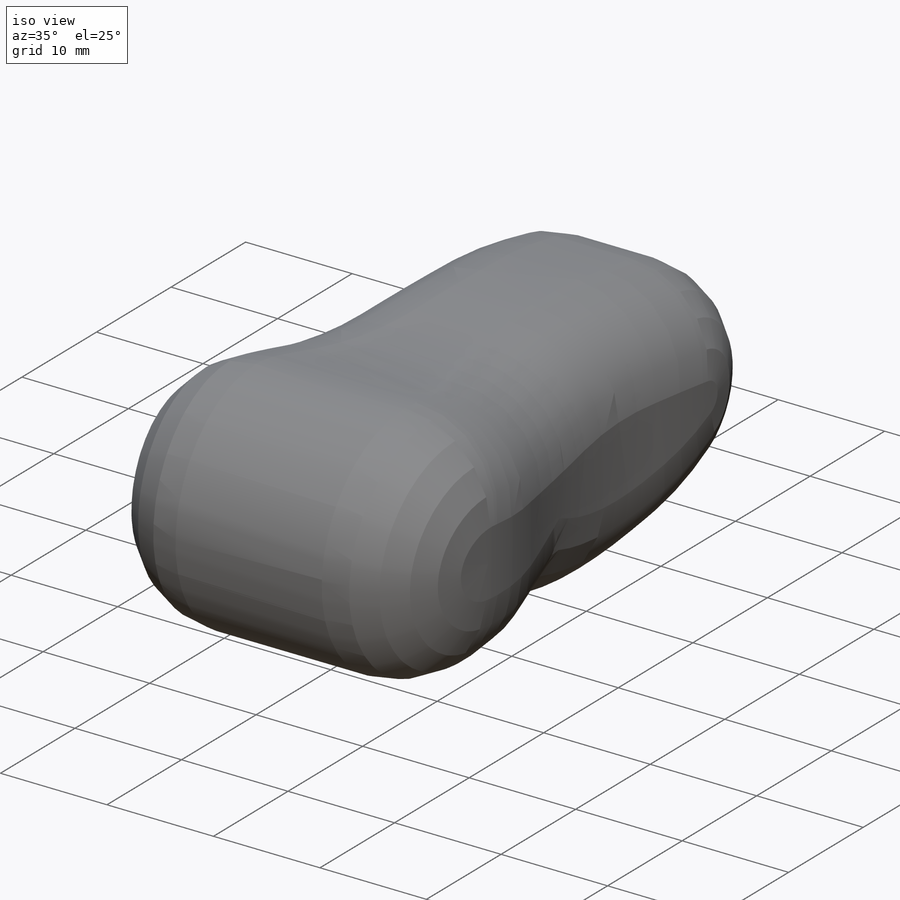
[diagram: iso view]
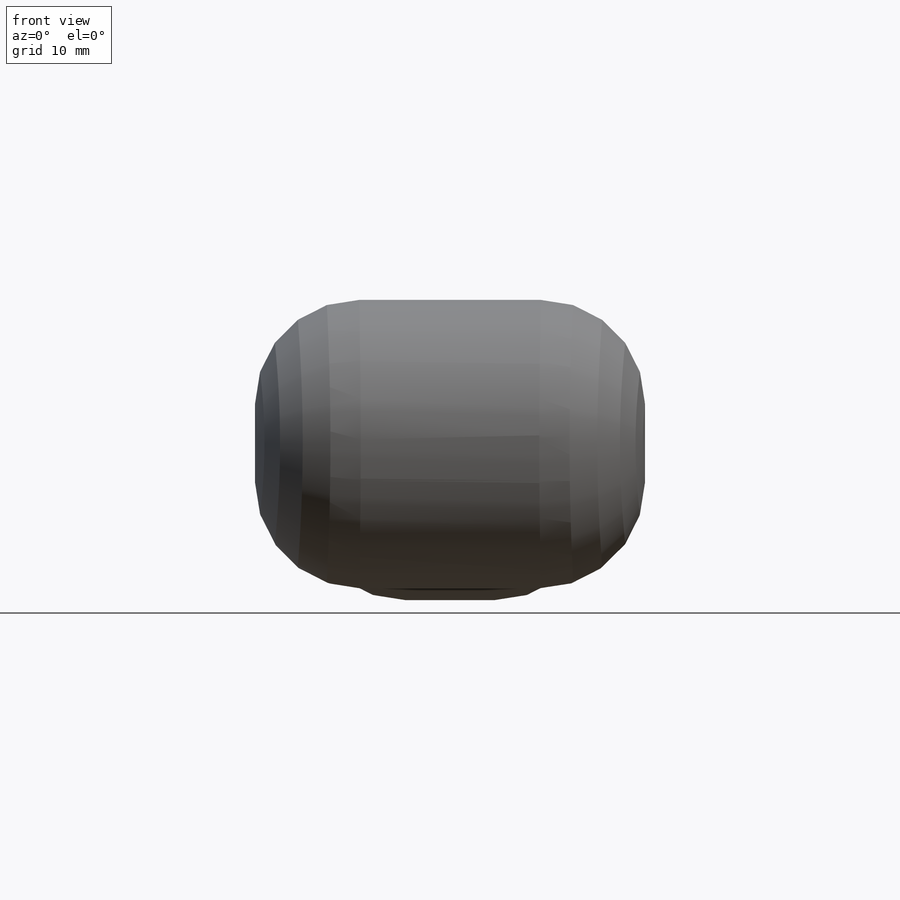
[diagram: front view]
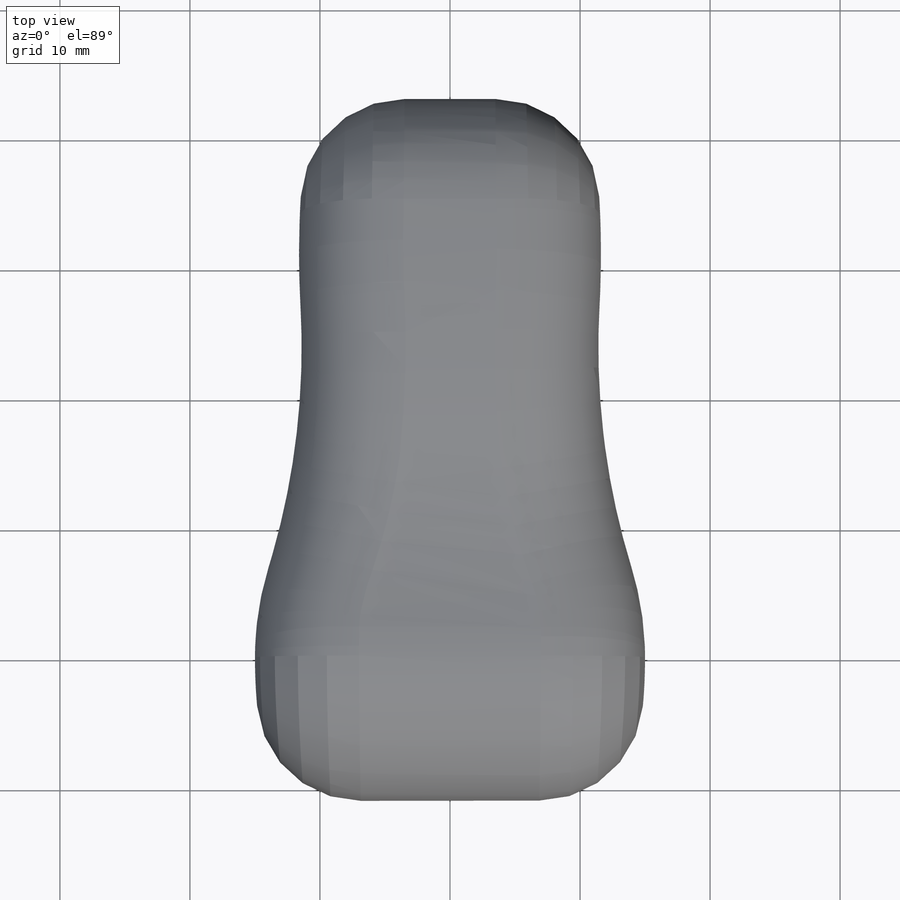
[diagram: top view]
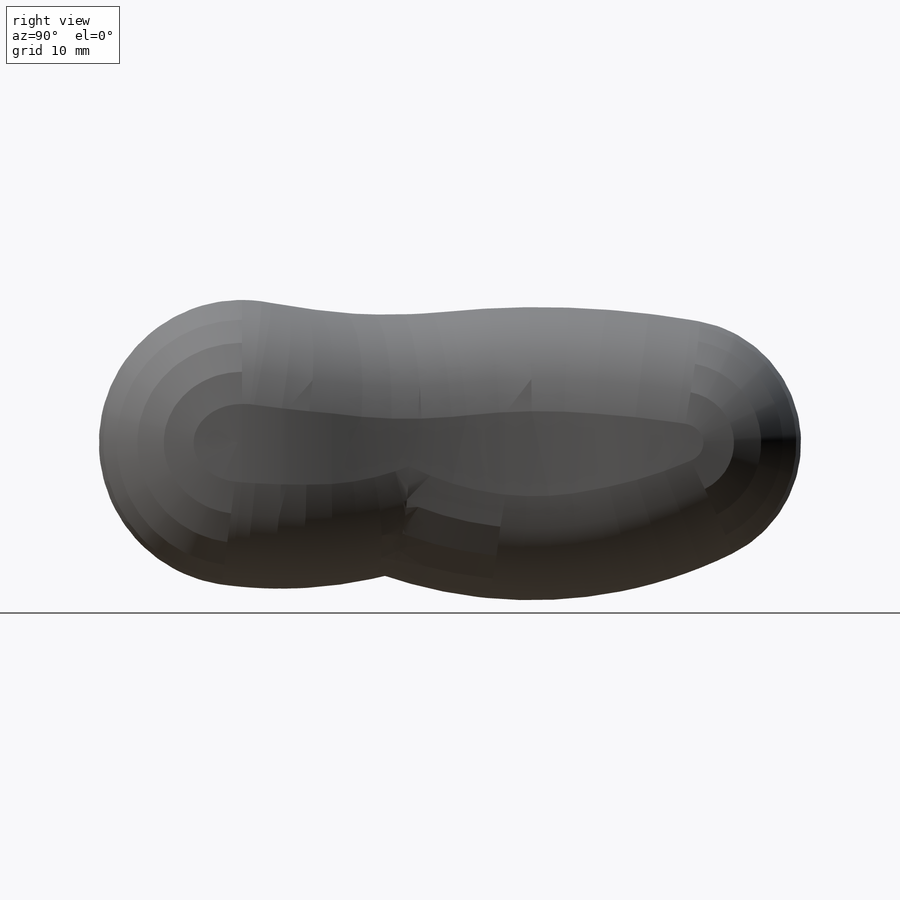
[diagram: right view]
SOLIDWORKS PART (.sldprt)
format: sldprt  version: not decoded by parser v0  size: 276,992 bytes
history: native  units: mm
features: plane x3, sketch x3, cut_extrude x2, material x1, extrude x1, fillet x1 (+10 scaffold rows collapsed)
feature tree (21):
  scaffold x10  (default folders/planes/origin — collapsed)
  material  "Material <not specified>"
  plane  "Vorne"
  plane  "Oben"
  plane  "Rechts"
  sketch  "Skizze2"  dims[c1.D1=22.0mm c1.D2=19.0mm c1.D3=15.0mm c1.D4=65.0mm c1.D5=85.0mm c1.D6=19.0mm c1.D7=22.0mm c2.D1=80.0mm c2.D2=19.0mm c3.D1=71.0mm c3.D3=44.0mm c3.D5=35.0mm c3.D8=33.0mm c4.D3=54.0mm c4.D2=54.0mm c4.D4=32.0mm]
  extrude  "Basis-Gundkörper"  Depth=30mm
  sketch  "Skizze3"  dims[c1.D6=23.5mm c1.D7=57.75mm c1.D8=71.5mm c1.D1=23.0mm c1.D2=27.0mm c1.D3=63.0mm c1.D4=2.0mm c1.D5=4.0mm c2.D1=4.35mm]
  cut_extrude  "Seitlische Verjüngung rechts"  [1 undecoded]
  sketch  "Skizze5"  dims[c1.D1=3.0mm c1.D2=3.0mm c1.D3=7.5mm c1.D4=9.5mm c1.D5=9.5mm c1.D6=7.5mm c2.D3=9.5mm c2.D6=9.5mm c2.D4=11.0mm c2.D5=11.0mm c2.D7=5.0mm c2.D8=1.0mm c2.D9=1.5mm c2.D10=5.0mm c2.D11=1.0mm c3.D3=5.5mm c3.D4=6.5mm c3.D5=6.5mm c3.D6=5.5mm c4.D3=8.0mm c4.D6=8.0mm c4.D4=8.0mm c4.D5=8.0mm]
  cut_extrude  "Gelenke"  Depth=10mm
  fillet  "Verrundung1"  Radius=8mm
decode coverage: 6 of 7 modeling features carry decoded parameters
note: 1 parameter value undecoded
note: suppression state not decoded; provenance and decode notes live in map.json
